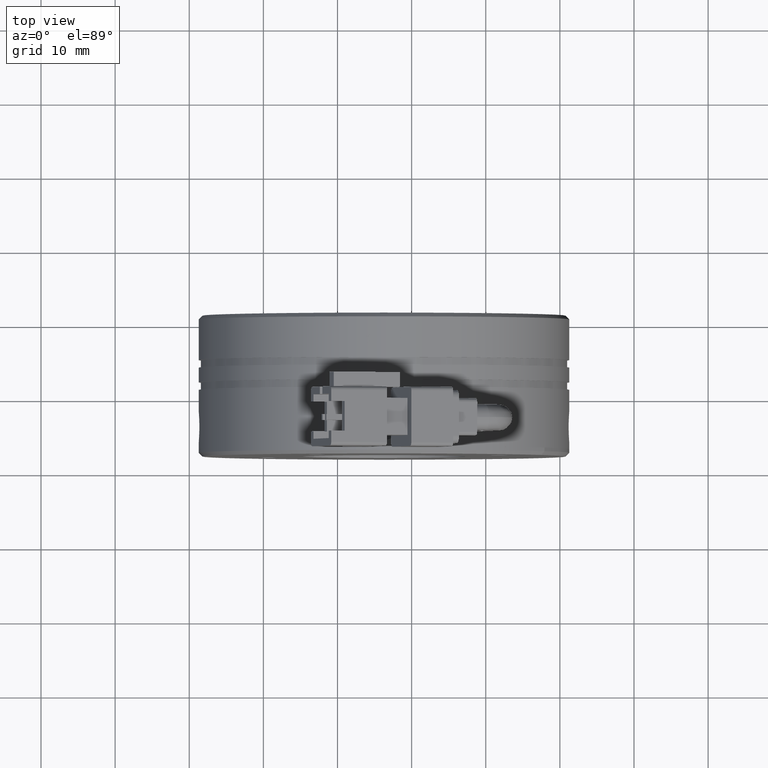
[diagram: clean part render]
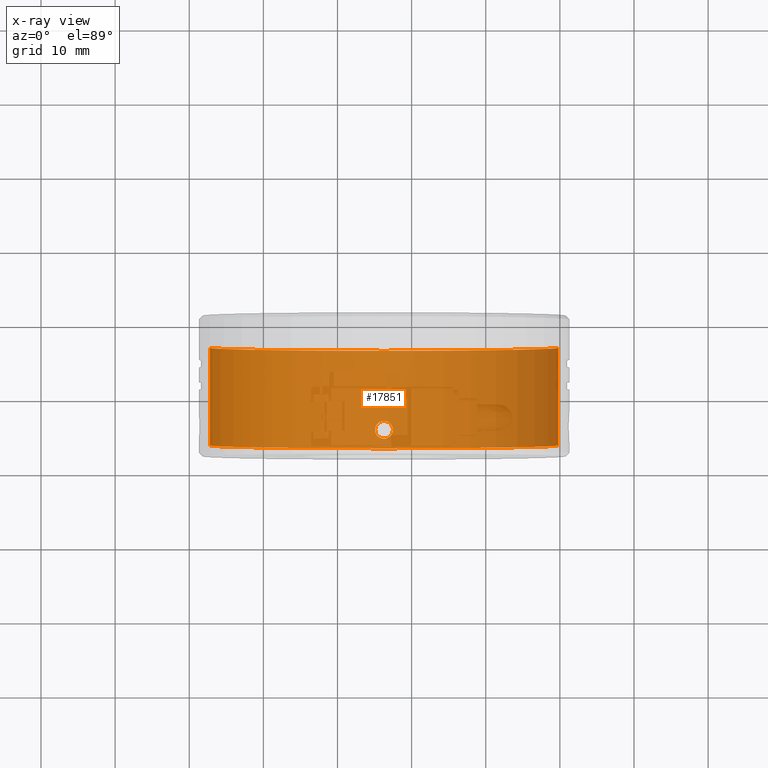
[diagram: x-ray — body ghosted, one internal face saturated and labeled with its STEP entity id]
A machine part, top view, then the same camera in x-ray: the body is ghosted and one INTERNAL B-rep face — a face not visible from any outside direction — is saturated and labeled: STEP entity #17851.
In plain terms, the highlighted cylindrical surface (partial cylindrical patch) has radius 23.5 mm, axis along (-0, 1, -0).
Its self-contained STEP definition (entity closure, byte-faithful):
#97 = DIRECTION ( 'NONE',  ( -1.000000000000000000, -1.291815354450813400E-016, 0.0000000000000000000 ) ) ;
#372 = CARTESIAN_POINT ( 'NONE',  ( -117.2030289015235800, 6.732042999483815600, -1.048467379871308200 ) ) ;
#540 = CARTESIAN_POINT ( 'NONE',  ( -92.52635228848824100, 6.127531206657422100, -23.46934170359279600 ) ) ;
#547 = CARTESIAN_POINT ( 'NONE',  ( -93.72635228848822900, 16.78530919654422200, 0.0000000000000000000 ) ) ;
#810 = CIRCLE ( 'NONE', #24073, 23.50000000000000700 ) ;
#1385 = CARTESIAN_POINT ( 'NONE',  ( -117.2263522884882300, 7.327531206657412500, -1.972152263052529500E-028 ) ) ;
#1983 = CARTESIAN_POINT ( 'NONE',  ( -70.24966960875733000, 6.732042926481792500, -1.048316736395676000 ) ) ;
#2245 = DIRECTION ( 'NONE',  ( -1.224646799147351700E-016, 1.000000000000000000, -0.0000000000000000000 ) ) ;
#2643 = CARTESIAN_POINT ( 'NONE',  ( -117.2263522884882400, 24.01734612509121200, 0.0000000000000000000 ) ) ;
#3412 = VERTEX_POINT ( 'NONE', #20453 ) ;
#3568 = CARTESIAN_POINT ( 'NONE',  ( -92.55764167313351700, 5.813072478533595000, -23.47099828520095600 ) ) ;
#3726 = CYLINDRICAL_SURFACE ( 'NONE', #50816, 23.50000000000000700 ) ;
#4361 = CARTESIAN_POINT ( 'NONE',  ( -117.2150144435694700, 7.086427033059473900, -0.7382385666928919000 ) ) ;
#4543 = DIRECTION ( 'NONE',  ( -1.000000000000000000, -1.476360405086643800E-016, 0.0000000000000000000 ) ) ;
#4882 = EDGE_CURVE ( 'NONE', #27881, #30261, #50473, .T. ) ;
#5546 = CARTESIAN_POINT ( 'NONE',  ( -70.24967567545289200, 5.523019413830928300, -1.048467379871584400 ) ) ;
#5960 = CARTESIAN_POINT ( 'NONE',  ( -70.25701058489545400, 6.286023701721856800, -1.200000000000239500 ) ) ;
#7785 = AXIS2_PLACEMENT_3D ( 'NONE', #547, #28262, #4543 ) ;
#8208 = CARTESIAN_POINT ( 'NONE',  ( -94.32994479879609200, 7.176526551332052000, -23.49269661661981300 ) ) ;
#8249 = VECTOR ( 'NONE', #30371, 1000.000000000000000 ) ;
#8364 = CARTESIAN_POINT ( 'NONE',  ( -117.2246709092666900, 7.295674881095159500, -0.3159790653651863800 ) ) ;
#8531 = CARTESIAN_POINT ( 'NONE',  ( -70.22635228848822900, 4.927531206657431700, 2.877919977996460600E-015 ) ) ;
#8760 = FACE_BOUND ( 'NONE', #33580, .T. ) ;
#9266 = CARTESIAN_POINT ( 'NONE',  ( -117.2263522884882400, 16.78530919654421900, 2.877919977996280700E-015 ) ) ;
#9532 = CARTESIAN_POINT ( 'NONE',  ( -70.23769013340701400, 5.168635380255253200, -0.7382385666930709700 ) ) ;
#9989 = FACE_OUTER_BOUND ( 'NONE', #30681, .T. ) ;
#10482 = CARTESIAN_POINT ( 'NONE',  ( -92.52635228848814100, 5.968963200341976400, -23.46934170359280000 ) ) ;
#10607 = CARTESIAN_POINT ( 'NONE',  ( -92.67825506393188600, 5.522336195100542100, -23.47669348980444000 ) ) ;
#10665 = CARTESIAN_POINT ( 'NONE',  ( -92.76635646491273200, 5.390310025290054900, -23.48065131060275200 ) ) ;
#10719 = CARTESIAN_POINT ( 'NONE',  ( -92.99051334207588600, 5.166475486898195700, -23.48874451724348600 ) ) ;
#10771 = CARTESIAN_POINT ( 'NONE',  ( -93.12275977818036700, 5.078535861982799400, -23.49269661661980600 ) ) ;
#10836 = CARTESIAN_POINT ( 'NONE',  ( -93.41334681926930700, 4.958453481316702500, -23.49836474768571300 ) ) ;
#10893 = CARTESIAN_POINT ( 'NONE',  ( -92.52635228848824100, 6.127531206657422100, -23.46934170359279600 ) ) ;
#11065 = CARTESIAN_POINT ( 'NONE',  ( -93.88370300668091800, 4.927638621442001800, -23.49999451499100900 ) ) ;
#11107 = CARTESIAN_POINT ( 'NONE',  ( -94.04161272719740300, 4.959183482535530100, -23.49832889752806900 ) ) ;
#11166 = CARTESIAN_POINT ( 'NONE',  ( -94.46418425551843300, 5.168310903423362700, -23.48867536120525700 ) ) ;
#11332 = CARTESIAN_POINT ( 'NONE',  ( -94.68554589669294300, 5.389664535986304900, -23.48067745738272900 ) ) ;
#11387 = CARTESIAN_POINT ( 'NONE',  ( -94.77467945293975000, 5.522757737338537300, -23.47668301450492500 ) ) ;
#11439 = CARTESIAN_POINT ( 'NONE',  ( -94.92635228848823200, 6.127531206657421200, -23.46934170359279600 ) ) ;
#11496 = EDGE_CURVE ( 'NONE', #20535, #25164, #41487, .T. ) ;
#11607 = CARTESIAN_POINT ( 'NONE',  ( -94.92635228848820400, 5.968963090555246400, -23.46934170359279300 ) ) ;
#11854 = EDGE_CURVE ( 'NONE', #44277, #18124, #44200, .T. ) ;
#12301 = CARTESIAN_POINT ( 'NONE',  ( -117.2263522884882300, 7.327531206657412500, -1.972152263052529500E-028 ) ) ;
#12504 = CARTESIAN_POINT ( 'NONE',  ( -117.2263522884882300, 4.927531206657425500, 1.487927585237400600E-029 ) ) ;
#12570 = CARTESIAN_POINT ( 'NONE',  ( -94.89513057265425300, 5.813368644627938200, -23.47099470686603300 ) ) ;
#12772 = VECTOR ( 'NONE', #2245, 1000.000000000000000 ) ;
#12829 = CARTESIAN_POINT ( 'NONE',  ( -117.1956939920810300, 6.127531206657418600, -1.199999999999910900 ) ) ;
#12998 = CARTESIAN_POINT ( 'NONE',  ( -117.1956939920810300, 5.969038711593016800, -1.199999999999911100 ) ) ;
#13157 = CARTESIAN_POINT ( 'NONE',  ( -117.1973777877011900, 5.811552157777597900, -1.168143672619332800 ) ) ;
#13315 = CARTESIAN_POINT ( 'NONE',  ( -117.2030349682191600, 5.523019486833152100, -1.048316736395401100 ) ) ;
#13431 = CARTESIAN_POINT ( 'NONE',  ( -70.22803366770975200, 4.959387532219611900, -0.3159790653652507800 ) ) ;
#13458 = EDGE_CURVE ( 'NONE', #21134, #23165, #42923, .T. ) ;
#13491 = CARTESIAN_POINT ( 'NONE',  ( -117.2070418420326500, 5.389292777899932200, -0.9588959344436245300 ) ) ;
#13654 = CARTESIAN_POINT ( 'NONE',  ( -117.2150361141603300, 5.168113711426256500, -0.7375604793040598800 ) ) ;
#13698 = CARTESIAN_POINT ( 'NONE',  ( -70.22635228848822900, 7.327531206657418700, 2.877919977996100100E-015 ) ) ;
#13709 = EDGE_CURVE ( 'NONE', #25164, #20535, #44686, .T. ) ;
#13823 = CARTESIAN_POINT ( 'NONE',  ( -117.2190250022617000, 5.079063876437064800, -0.6045118918368167500 ) ) ;
#13893 = CARTESIAN_POINT ( 'NONE',  ( -117.2263522884882600, 4.927531206657435300, -0.1584928137568281900 ) ) ;
#14059 = CARTESIAN_POINT ( 'NONE',  ( -117.2247033675538600, 4.958721580975749900, -0.3140102368163331100 ) ) ;
#14146 = CARTESIAN_POINT ( 'NONE',  ( -117.2263522884882400, 24.01734612509121200, 0.0000000000000000000 ) ) ;
#15352 = ORIENTED_EDGE ( 'NONE', *, *, #11496, .F. ) ;
#15708 = B_SPLINE_CURVE_WITH_KNOTS ( 'NONE', 3,
 ( #20050, #47491, #24068, #372, #28088, #4361, #32071, #8364, #36057, #12301 ),
 .UNSPECIFIED., .F., .F.,
 ( 4, 2, 2, 2, 4 ),
 ( 0.001874895207670102200, 0.002343619967946616000, 0.002812344728223129800, 0.003281069488499643700, 0.003749794248776157500 ),
 .UNSPECIFIED. ) ;
#15887 = ORIENTED_EDGE ( 'NONE', *, *, #13709, .F. ) ;
#17045 = ORIENTED_EDGE ( 'NONE', *, *, #37039, .F. ) ;
#17296 = ORIENTED_EDGE ( 'NONE', *, *, #39113, .T. ) ;
#17418 = CARTESIAN_POINT ( 'NONE',  ( -70.22635228848822900, 4.927531206657431700, 2.877919977996460600E-015 ) ) ;
#17637 = ORIENTED_EDGE ( 'NONE', *, *, #36678, .F. ) ;
#17851 = ADVANCED_FACE ( 'NONE', ( #8760, #9989 ), #3726, .F. ) ;
#18015 = CARTESIAN_POINT ( 'NONE',  ( -117.2263522884882300, 4.927531206657425500, 1.487927585237400600E-029 ) ) ;
#18110 = ORIENTED_EDGE ( 'NONE', *, *, #33161, .F. ) ;
#18124 = VERTEX_POINT ( 'NONE', #9266 ) ;
#18830 = ORIENTED_EDGE ( 'NONE', *, *, #4882, .T. ) ;
#18931 = ORIENTED_EDGE ( 'NONE', *, *, #46436, .F. ) ;
#19167 = ORIENTED_EDGE ( 'NONE', *, *, #11854, .F. ) ;
#19241 = VECTOR ( 'NONE', #49174, 1000.000000000000000 ) ;
#19472 = ORIENTED_EDGE ( 'NONE', *, *, #29846, .F. ) ;
#20050 = CARTESIAN_POINT ( 'NONE',  ( -117.1956939920810300, 6.127531206657418600, -1.199999999999910900 ) ) ;
#20270 = ORIENTED_EDGE ( 'NONE', *, *, #13458, .F. ) ;
#20365 = ORIENTED_EDGE ( 'NONE', *, *, #31501, .F. ) ;
#20453 = CARTESIAN_POINT ( 'NONE',  ( -70.22635228848822900, 3.627531206657431900, -2.258754526011502900E-018 ) ) ;
#20535 = VERTEX_POINT ( 'NONE', #27551 ) ;
#21134 = VERTEX_POINT ( 'NONE', #12504 ) ;
#21683 = CARTESIAN_POINT ( 'NONE',  ( -70.23367957471472800, 7.175998536877893100, -0.6045118918369504200 ) ) ;
#23165 = VERTEX_POINT ( 'NONE', #34913 ) ;
#23784 = DIRECTION ( 'NONE',  ( -1.224646799147351700E-016, 1.000000000000000000, -0.0000000000000000000 ) ) ;
#24043 = CARTESIAN_POINT ( 'NONE',  ( -117.2263522884882400, 3.627531206657425700, 2.906277393448951200E-015 ) ) ;
#24068 = CARTESIAN_POINT ( 'NONE',  ( -117.1973452948721500, 6.441541429973464800, -1.168809622638938800 ) ) ;
#24073 = AXIS2_PLACEMENT_3D ( 'NONE', #47215, #23784, #97 ) ;
#24825 = CARTESIAN_POINT ( 'NONE',  ( -93.57064420649742000, 4.927424354009106700, -23.50000545630416900 ) ) ;
#24904 = B_SPLINE_CURVE_WITH_KNOTS ( 'NONE', 3,
 ( #13698, #37463, #45211, #21683, #49033, #25721, #1983, #29683, #5960, #33676 ),
 .UNSPECIFIED., .F., .F.,
 ( 4, 2, 2, 2, 4 ),
 ( 2.806702024536074400E-021, 0.0004687238019176085300, 0.0009374476038352170700, 0.001406171405752825500, 0.001874895207670434100 ),
 .UNSPECIFIED. ) ;
#25164 = VERTEX_POINT ( 'NONE', #540 ) ;
#25721 = CARTESIAN_POINT ( 'NONE',  ( -70.24566273494380700, 6.865769635415026600, -0.9588959344438681100 ) ) ;
#27551 = CARTESIAN_POINT ( 'NONE',  ( -94.92635228848823200, 6.127531206657421200, -23.46934170359279600 ) ) ;
#27881 = VERTEX_POINT ( 'NONE', #47281 ) ;
#28088 = CARTESIAN_POINT ( 'NONE',  ( -117.2070201646439400, 6.865091563967570900, -0.9594175871686626600 ) ) ;
#28191 = CARTESIAN_POINT ( 'NONE',  ( -70.22635228848822900, 16.78530919654422600, 0.0000000000000000000 ) ) ;
#28262 = DIRECTION ( 'NONE',  ( 1.224646799147351700E-016, -1.000000000000000000, 0.0000000000000000000 ) ) ;
#29266 = CARTESIAN_POINT ( 'NONE',  ( -70.25535928210436500, 5.813520983341323500, -1.168809622639256400 ) ) ;
#29370 = VECTOR ( 'NONE', #31031, 1000.000000000000000 ) ;
#29683 = CARTESIAN_POINT ( 'NONE',  ( -70.25532678927531500, 6.443510255537303200, -1.168143672619650100 ) ) ;
#29846 = EDGE_CURVE ( 'NONE', #23165, #44277, #15708, .T. ) ;
#30261 = VERTEX_POINT ( 'NONE', #28191 ) ;
#30371 = DIRECTION ( 'NONE',  ( -1.224646799147351700E-016, 1.000000000000000000, -0.0000000000000000000 ) ) ;
#30681 = EDGE_LOOP ( 'NONE', ( #17045, #17296, #17637, #18110, #18830, #18931, #19167, #19472, #20270, #20365 ) ) ;
#31031 = DIRECTION ( 'NONE',  ( -1.224646799147351700E-016, 1.000000000000000000, -0.0000000000000000000 ) ) ;
#31501 = EDGE_CURVE ( 'NONE', #39248, #21134, #38526, .T. ) ;
#32071 = CARTESIAN_POINT ( 'NONE',  ( -117.2190189365430800, 7.175847894082054700, -0.6045118168778429400 ) ) ;
#33161 = EDGE_CURVE ( 'NONE', #27881, #50830, #24904, .T. ) ;
#33260 = CARTESIAN_POINT ( 'NONE',  ( -70.24568441233255100, 5.389970849347161400, -0.9594175871689084600 ) ) ;
#33580 = EDGE_LOOP ( 'NONE', ( #15352, #15887 ) ) ;
#33676 = CARTESIAN_POINT ( 'NONE',  ( -70.25701058489544000, 6.127531206657424800, -1.200000000000239500 ) ) ;
#34511 = DIRECTION ( 'NONE',  ( -1.000000000000000000, -1.476360405086643800E-016, 0.0000000000000000000 ) ) ;
#34913 = CARTESIAN_POINT ( 'NONE',  ( -117.1956939920810300, 6.127531206657418600, -1.199999999999910900 ) ) ;
#35915 = DIRECTION ( 'NONE',  ( -1.224646799147351700E-016, 1.000000000000000000, -0.0000000000000000000 ) ) ;
#36057 = CARTESIAN_POINT ( 'NONE',  ( -117.2263522884882400, 7.327531206657441000, -0.1584924912449848500 ) ) ;
#36678 = EDGE_CURVE ( 'NONE', #50830, #41029, #47749, .T. ) ;
#36944 = CARTESIAN_POINT ( 'NONE',  ( -93.72635228848822900, 24.01734612509121500, 0.0000000000000000000 ) ) ;
#37028 = CARTESIAN_POINT ( 'NONE',  ( -70.25701058489544000, 6.127531206657424800, -1.200000000000239500 ) ) ;
#37039 = EDGE_CURVE ( 'NONE', #3412, #39248, #810, .T. ) ;
#37164 = CARTESIAN_POINT ( 'NONE',  ( -70.25701058489544000, 6.127531206657424800, -1.200000000000239500 ) ) ;
#37195 = CARTESIAN_POINT ( 'NONE',  ( -70.23368564043339300, 5.079214519232675900, -0.6045118168779820600 ) ) ;
#37463 = CARTESIAN_POINT ( 'NONE',  ( -70.22635228848824300, 7.327531206657450700, -0.1584928137568513100 ) ) ;
#38526 = LINE ( 'NONE', #2643, #8249 ) ;
#39113 = EDGE_CURVE ( 'NONE', #3412, #41029, #39809, .T. ) ;
#39248 = VERTEX_POINT ( 'NONE', #24043 ) ;
#39809 = LINE ( 'NONE', #42636, #29370 ) ;
#41029 = VERTEX_POINT ( 'NONE', #8531 ) ;
#41106 = CARTESIAN_POINT ( 'NONE',  ( -70.22635228848822900, 4.927531206657398900, -0.1584924912453062300 ) ) ;
#41487 = B_SPLINE_CURVE_WITH_KNOTS ( 'NONE', 3,
 ( #11439, #11607, #12570, #11387, #11332, #11166, #45729, #11107, #11065, #24825, #10836, #10771, #10719, #10665, #10607, #3568, #10482, #10893 ),
 .UNSPECIFIED., .F., .F.,
 ( 4, 2, 2, 2, 2, 2, 2, 2, 4 ),
 ( 0.0000000000000000000, 0.0004689464760253244400, 0.0009378929520506488900, 0.001406839428075973300, 0.001875785904101297800, 0.002344732380126622400, 0.002813678856151946700, 0.003282625332177270900, 0.003751571808202595500 ),
 .UNSPECIFIED. ) ;
#41901 = CIRCLE ( 'NONE', #7785, 23.50000000000000700 ) ;
#42636 = CARTESIAN_POINT ( 'NONE',  ( -70.22635228848822900, 24.01734612509121900, 2.877919977996280300E-015 ) ) ;
#42923 = B_SPLINE_CURVE_WITH_KNOTS ( 'NONE', 3,
 ( #18015, #13893, #14059, #13823, #13654, #13491, #13315, #13157, #12998, #12829 ),
 .UNSPECIFIED., .F., .F.,
 ( 4, 2, 2, 2, 4 ),
 ( 2.102443818765147500E-018, 0.0004687238019175268900, 0.0009374476038350516200, 0.001406171405752577100, 0.001874895207670102200 ),
 .UNSPECIFIED. ) ;
#44200 = LINE ( 'NONE', #14146, #12772 ) ;
#44277 = VERTEX_POINT ( 'NONE', #1385 ) ;
#44686 = B_SPLINE_CURVE_WITH_KNOTS ( 'NONE', 3,
 ( #49382, #49536, #48562, #48405, #48223, #47997, #47896, #47833, #47727, #47662, #47506, #8208, #46996, #46506, #46189, #46023, #45878, #45379 ),
 .UNSPECIFIED., .F., .F.,
 ( 4, 2, 2, 2, 2, 2, 2, 2, 4 ),
 ( 0.003751571808202595500, 0.004220518608907716300, 0.004689465409612837000, 0.005158412210317958600, 0.005627359011023078500, 0.006096305811728200100, 0.006565252612433320800, 0.007034199413138441500, 0.007503146213843562200 ),
 .UNSPECIFIED. ) ;
#44788 = CARTESIAN_POINT ( 'NONE',  ( -70.25701058489544000, 5.969038387537105800, -1.200000000000239800 ) ) ;
#45211 = CARTESIAN_POINT ( 'NONE',  ( -70.22800120942261500, 7.296340832339169900, -0.3140102368163921200 ) ) ;
#45379 = CARTESIAN_POINT ( 'NONE',  ( -94.92635228848823200, 6.127531206657421200, -23.46934170359279600 ) ) ;
#45729 = CARTESIAN_POINT ( 'NONE',  ( -94.33034890149778600, 5.078906564495665200, -23.49268052419925100 ) ) ;
#45878 = CARTESIAN_POINT ( 'NONE',  ( -94.92635228848824600, 6.286099432545824200, -23.46934170359280000 ) ) ;
#46023 = CARTESIAN_POINT ( 'NONE',  ( -94.89506290384297000, 6.441989934781243000, -23.47099828520095200 ) ) ;
#46189 = CARTESIAN_POINT ( 'NONE',  ( -94.77444951304458700, 6.732726218214312800, -23.47669348980444000 ) ) ;
#46436 = EDGE_CURVE ( 'NONE', #18124, #30261, #41901, .T. ) ;
#46506 = CARTESIAN_POINT ( 'NONE',  ( -94.68634811206376900, 6.864752388024787600, -23.48065131060275600 ) ) ;
#46996 = CARTESIAN_POINT ( 'NONE',  ( -94.46219123490060100, 7.088586926416633500, -23.48874451724348200 ) ) ;
#47215 = CARTESIAN_POINT ( 'NONE',  ( -93.72635228848822900, 3.627531206657428800, 0.0000000000000000000 ) ) ;
#47281 = CARTESIAN_POINT ( 'NONE',  ( -70.22635228848822900, 7.327531206657418700, 2.877919977996100100E-015 ) ) ;
#47491 = CARTESIAN_POINT ( 'NONE',  ( -117.1956939920810200, 6.286024025777710900, -1.199999999999910500 ) ) ;
#47506 = CARTESIAN_POINT ( 'NONE',  ( -94.03935775770718000, 7.296608931998145300, -23.49836474768571300 ) ) ;
#47662 = CARTESIAN_POINT ( 'NONE',  ( -93.88206037047903900, 7.327638059305735800, -23.50000545630417600 ) ) ;
#47727 = CARTESIAN_POINT ( 'NONE',  ( -93.56900157029559800, 7.327423791872844200, -23.49999451499100900 ) ) ;
#47749 = B_SPLINE_CURVE_WITH_KNOTS ( 'NONE', 3,
 ( #37028, #44788, #29266, #5546, #33260, #9532, #37195, #13431, #41106, #17418 ),
 .UNSPECIFIED., .F., .F.,
 ( 4, 2, 2, 2, 4 ),
 ( 0.001874895207670434100, 0.002343619967947029700, 0.002812344728223625100, 0.003281069488500220500, 0.003749794248776815900 ),
 .UNSPECIFIED. ) ;
#47833 = CARTESIAN_POINT ( 'NONE',  ( -93.41109184977908300, 7.295878930779317700, -23.49832889752806900 ) ) ;
#47896 = CARTESIAN_POINT ( 'NONE',  ( -93.12235567547868700, 7.176155848819189700, -23.49268052419925100 ) ) ;
#47997 = CARTESIAN_POINT ( 'NONE',  ( -92.98852032145808300, 7.086751509891494800, -23.48867536120525700 ) ) ;
#48223 = CARTESIAN_POINT ( 'NONE',  ( -92.76715868028351500, 6.865397877328550900, -23.48067745738272900 ) ) ;
#48405 = CARTESIAN_POINT ( 'NONE',  ( -92.67802512403667900, 6.732304675976314100, -23.47668301450492500 ) ) ;
#48562 = CARTESIAN_POINT ( 'NONE',  ( -92.55757400432222000, 6.441693768686905100, -23.47099470686603300 ) ) ;
#49033 = CARTESIAN_POINT ( 'NONE',  ( -70.23766846281611700, 7.086948701888709400, -0.7375604793042350700 ) ) ;
#49174 = DIRECTION ( 'NONE',  ( -1.224646799147351700E-016, 1.000000000000000000, -0.0000000000000000000 ) ) ;
#49382 = CARTESIAN_POINT ( 'NONE',  ( -92.52635228848824100, 6.127531206657422100, -23.46934170359279600 ) ) ;
#49506 = CARTESIAN_POINT ( 'NONE',  ( -70.22635228848822900, 24.01734612509121900, 2.877919977996280300E-015 ) ) ;
#49536 = CARTESIAN_POINT ( 'NONE',  ( -92.52635228848834000, 6.286099322760179600, -23.46934170359280000 ) ) ;
#50473 = LINE ( 'NONE', #49506, #19241 ) ;
#50816 = AXIS2_PLACEMENT_3D ( 'NONE', #36944, #35915, #34511 ) ;
#50830 = VERTEX_POINT ( 'NONE', #37164 ) ;